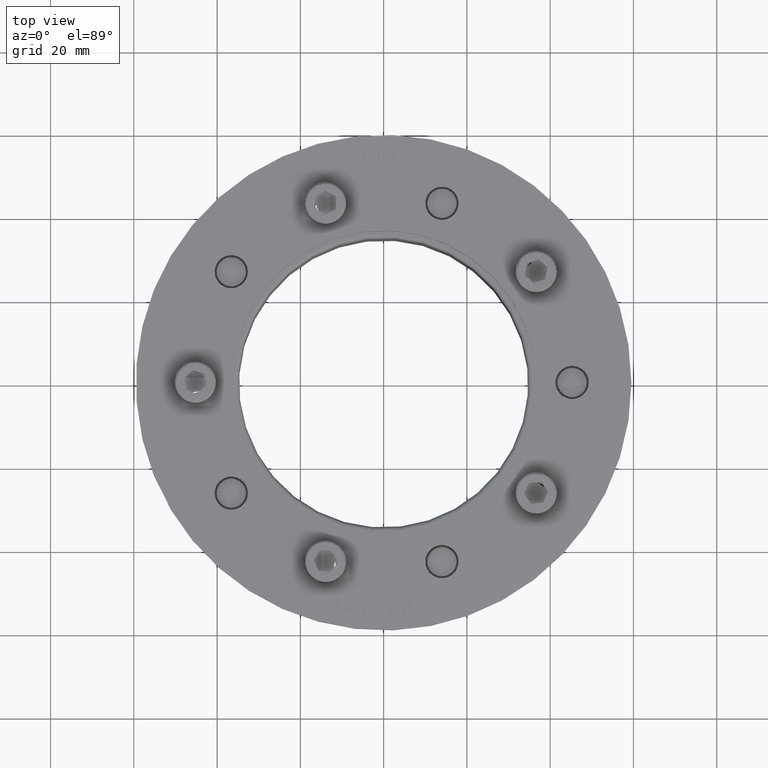
[diagram: clean part render]
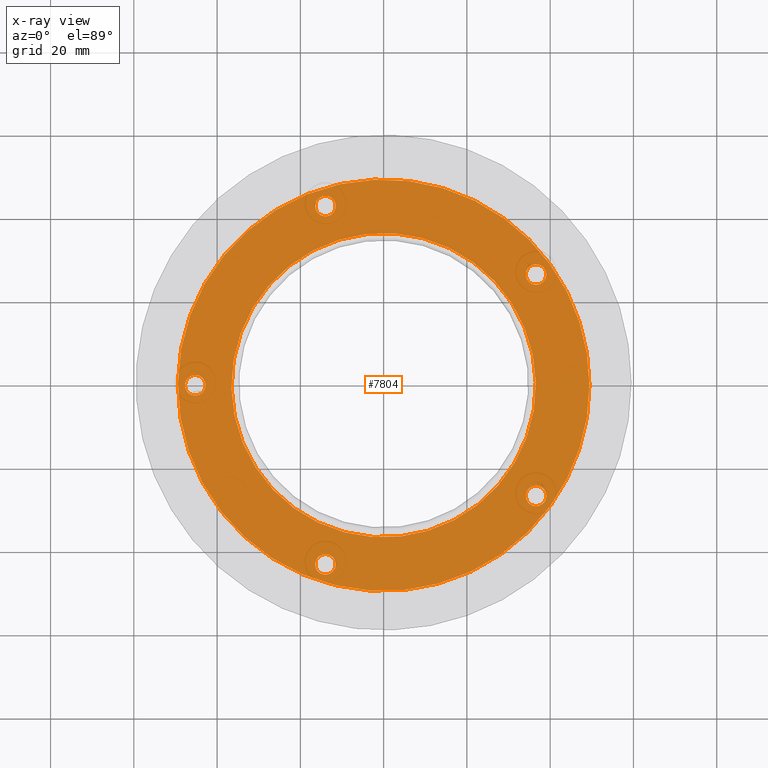
[diagram: x-ray — body ghosted, one internal face saturated and labeled with its STEP entity id]
A machine part, top view, then the same camera in x-ray: the body is ghosted and one INTERNAL B-rep face — a face not visible from any outside direction — is saturated and labeled: STEP entity #7804.
In plain terms, the highlighted planar face has unit normal (0, -0, 1).
Its self-contained STEP definition (entity closure, byte-faithful):
#104=FACE_BOUND('',#1557,.T.);
#105=FACE_BOUND('',#1558,.T.);
#106=FACE_BOUND('',#1559,.T.);
#107=FACE_BOUND('',#1560,.T.);
#108=FACE_BOUND('',#1561,.T.);
#109=FACE_BOUND('',#1562,.T.);
#413=CIRCLE('',#8438,2.4585);
#414=CIRCLE('',#8439,2.4585);
#416=CIRCLE('',#8442,2.4585);
#417=CIRCLE('',#8443,2.4585);
#419=CIRCLE('',#8446,2.4585);
#420=CIRCLE('',#8447,2.4585);
#422=CIRCLE('',#8450,2.4585);
#423=CIRCLE('',#8451,2.4585);
#425=CIRCLE('',#8454,2.4585);
#426=CIRCLE('',#8455,2.4585);
#431=CIRCLE('',#8461,49.4211348165604);
#432=CIRCLE('',#8462,49.4211348165604);
#436=CIRCLE('',#8468,36.55);
#437=CIRCLE('',#8469,36.55);
#1105=FACE_OUTER_BOUND('',#1556,.T.);
#1556=EDGE_LOOP('',(#6305,#6306));
#1557=EDGE_LOOP('',(#6307,#6308));
#1558=EDGE_LOOP('',(#6309,#6310));
#1559=EDGE_LOOP('',(#6311,#6312));
#1560=EDGE_LOOP('',(#6313,#6314));
#1561=EDGE_LOOP('',(#6315,#6316));
#1562=EDGE_LOOP('',(#6317,#6318));
#3507=VERTEX_POINT('',#12678);
#3508=VERTEX_POINT('',#12679);
#3510=VERTEX_POINT('',#12686);
#3511=VERTEX_POINT('',#12687);
#3513=VERTEX_POINT('',#12694);
#3514=VERTEX_POINT('',#12695);
#3516=VERTEX_POINT('',#12702);
#3517=VERTEX_POINT('',#12703);
#3519=VERTEX_POINT('',#12710);
#3520=VERTEX_POINT('',#12711);
#3525=VERTEX_POINT('',#12723);
#3526=VERTEX_POINT('',#12725);
#3529=VERTEX_POINT('',#12736);
#3530=VERTEX_POINT('',#12737);
#4495=EDGE_CURVE('',#3507,#3508,#413,.T.);
#4496=EDGE_CURVE('',#3508,#3507,#414,.T.);
#4499=EDGE_CURVE('',#3510,#3511,#416,.T.);
#4500=EDGE_CURVE('',#3511,#3510,#417,.T.);
#4503=EDGE_CURVE('',#3513,#3514,#419,.T.);
#4504=EDGE_CURVE('',#3514,#3513,#420,.T.);
#4507=EDGE_CURVE('',#3516,#3517,#422,.T.);
#4508=EDGE_CURVE('',#3517,#3516,#423,.T.);
#4511=EDGE_CURVE('',#3519,#3520,#425,.T.);
#4512=EDGE_CURVE('',#3520,#3519,#426,.T.);
#4518=EDGE_CURVE('',#3525,#3526,#431,.T.);
#4519=EDGE_CURVE('',#3526,#3525,#432,.T.);
#4524=EDGE_CURVE('',#3529,#3530,#436,.T.);
#4525=EDGE_CURVE('',#3530,#3529,#437,.T.);
#6305=ORIENTED_EDGE('',*,*,#4519,.F.);
#6306=ORIENTED_EDGE('',*,*,#4518,.F.);
#6307=ORIENTED_EDGE('',*,*,#4495,.T.);
#6308=ORIENTED_EDGE('',*,*,#4496,.T.);
#6309=ORIENTED_EDGE('',*,*,#4499,.T.);
#6310=ORIENTED_EDGE('',*,*,#4500,.T.);
#6311=ORIENTED_EDGE('',*,*,#4503,.T.);
#6312=ORIENTED_EDGE('',*,*,#4504,.T.);
#6313=ORIENTED_EDGE('',*,*,#4507,.T.);
#6314=ORIENTED_EDGE('',*,*,#4508,.T.);
#6315=ORIENTED_EDGE('',*,*,#4511,.T.);
#6316=ORIENTED_EDGE('',*,*,#4512,.T.);
#6317=ORIENTED_EDGE('',*,*,#4524,.F.);
#6318=ORIENTED_EDGE('',*,*,#4525,.F.);
#7472=PLANE('',#8467);
#7804=ADVANCED_FACE('',(#1105,#104,#105,#106,#107,#108,#109),#7472,.T.);
#8438=AXIS2_PLACEMENT_3D('',#12680,#9639,#9640);
#8439=AXIS2_PLACEMENT_3D('',#12681,#9641,#9642);
#8442=AXIS2_PLACEMENT_3D('',#12688,#9648,#9649);
#8443=AXIS2_PLACEMENT_3D('',#12689,#9650,#9651);
#8446=AXIS2_PLACEMENT_3D('',#12696,#9657,#9658);
#8447=AXIS2_PLACEMENT_3D('',#12697,#9659,#9660);
#8450=AXIS2_PLACEMENT_3D('',#12704,#9666,#9667);
#8451=AXIS2_PLACEMENT_3D('',#12705,#9668,#9669);
#8454=AXIS2_PLACEMENT_3D('',#12712,#9675,#9676);
#8455=AXIS2_PLACEMENT_3D('',#12713,#9677,#9678);
#8461=AXIS2_PLACEMENT_3D('',#12726,#9690,#9691);
#8462=AXIS2_PLACEMENT_3D('',#12727,#9692,#9693);
#8467=AXIS2_PLACEMENT_3D('',#12735,#9703,#9704);
#8468=AXIS2_PLACEMENT_3D('',#12738,#9705,#9706);
#8469=AXIS2_PLACEMENT_3D('',#12739,#9707,#9708);
#9639=DIRECTION('center_axis',(0.,-1.,0.));
#9640=DIRECTION('ref_axis',(1.,0.,0.));
#9641=DIRECTION('center_axis',(0.,-1.,0.));
#9642=DIRECTION('ref_axis',(1.,0.,0.));
#9648=DIRECTION('center_axis',(0.,-1.,0.));
#9649=DIRECTION('ref_axis',(1.,0.,0.));
#9650=DIRECTION('center_axis',(0.,-1.,0.));
#9651=DIRECTION('ref_axis',(1.,0.,0.));
#9657=DIRECTION('center_axis',(0.,-1.,0.));
#9658=DIRECTION('ref_axis',(1.,0.,0.));
#9659=DIRECTION('center_axis',(0.,-1.,0.));
#9660=DIRECTION('ref_axis',(1.,0.,0.));
#9666=DIRECTION('center_axis',(0.,-1.,0.));
#9667=DIRECTION('ref_axis',(1.,0.,0.));
#9668=DIRECTION('center_axis',(0.,-1.,0.));
#9669=DIRECTION('ref_axis',(1.,0.,0.));
#9675=DIRECTION('center_axis',(0.,-1.,0.));
#9676=DIRECTION('ref_axis',(1.,0.,0.));
#9677=DIRECTION('center_axis',(0.,-1.,0.));
#9678=DIRECTION('ref_axis',(1.,0.,0.));
#9690=DIRECTION('center_axis',(0.,-1.,0.));
#9691=DIRECTION('ref_axis',(1.,0.,1.22464679914735E-16));
#9692=DIRECTION('center_axis',(0.,-1.,0.));
#9693=DIRECTION('ref_axis',(1.,0.,1.22464679914735E-16));
#9703=DIRECTION('center_axis',(0.,1.,0.));
#9704=DIRECTION('ref_axis',(0.,0.,1.));
#9705=DIRECTION('center_axis',(0.,1.,0.));
#9706=DIRECTION('ref_axis',(-1.,0.,0.));
#9707=DIRECTION('center_axis',(0.,1.,0.));
#9708=DIRECTION('ref_axis',(-1.,0.,0.));
#12678=CARTESIAN_POINT('',(29.0558070778145,2.99999999999999,36.6080012594028));
#12679=CARTESIAN_POINT('',(24.1388070778145,2.99999999999999,36.6080012594028));
#12680=CARTESIAN_POINT('Origin',(26.5973070778145,2.99999999999999,36.6080012594028));
#12681=CARTESIAN_POINT('Origin',(26.5973070778145,2.99999999999999,36.6080012594028));
#12686=CARTESIAN_POINT('',(-40.5768166867422,2.99999999999999,-13.9829902979228));
#12687=CARTESIAN_POINT('',(-45.4938166867422,2.99999999999999,-13.9829902979228));
#12688=CARTESIAN_POINT('Origin',(-43.0353166867422,2.99999999999999,-13.9829902979228));
#12689=CARTESIAN_POINT('Origin',(-43.0353166867422,2.99999999999999,-13.9829902979228));
#12694=CARTESIAN_POINT('',(2.45846982562025,2.99999999999999,-45.2499999999899));
#12695=CARTESIAN_POINT('',(-2.45853017437975,2.99999999999999,-45.2499999999899));
#12696=CARTESIAN_POINT('Origin',(-3.01743797498557E-5,2.99999999999999,
-45.2499999999899));
#12697=CARTESIAN_POINT('Origin',(-3.01743797498557E-5,2.99999999999999,
-45.2499999999899));
#12702=CARTESIAN_POINT('',(-24.1387582546425,2.99999999999999,36.6080367315136));
#12703=CARTESIAN_POINT('',(-29.0557582546425,2.99999999999999,36.6080367315136));
#12704=CARTESIAN_POINT('Origin',(-26.5972582546425,2.99999999999999,36.6080367315136));
#12705=CARTESIAN_POINT('Origin',(-26.5972582546425,2.99999999999999,36.6080367315136));
#12710=CARTESIAN_POINT('',(45.49379803795,2.99999999999999,-13.9830476930037));
#12711=CARTESIAN_POINT('',(40.57679803795,2.99999999999999,-13.9830476930037));
#12712=CARTESIAN_POINT('Origin',(43.03529803795,2.99999999999999,-13.9830476930037));
#12713=CARTESIAN_POINT('Origin',(43.03529803795,2.99999999999999,-13.9830476930037));
#12723=CARTESIAN_POINT('',(-6.05234345633305E-15,2.99999999999999,-49.4211348165604));
#12725=CARTESIAN_POINT('',(-49.4211348165604,2.99999999999999,-1.21046869126661E-14));
#12726=CARTESIAN_POINT('Origin',(0.,2.99999999999999,0.));
#12727=CARTESIAN_POINT('Origin',(0.,2.99999999999999,0.));
#12735=CARTESIAN_POINT('Origin',(-43.4437329952889,2.99999999999999,0.));
#12736=CARTESIAN_POINT('',(-36.55,2.99999999999999,0.));
#12737=CARTESIAN_POINT('',(36.55,2.99999999999999,-4.47608405088358E-15));
#12738=CARTESIAN_POINT('Origin',(0.,2.99999999999999,0.));
#12739=CARTESIAN_POINT('Origin',(0.,2.99999999999999,0.));